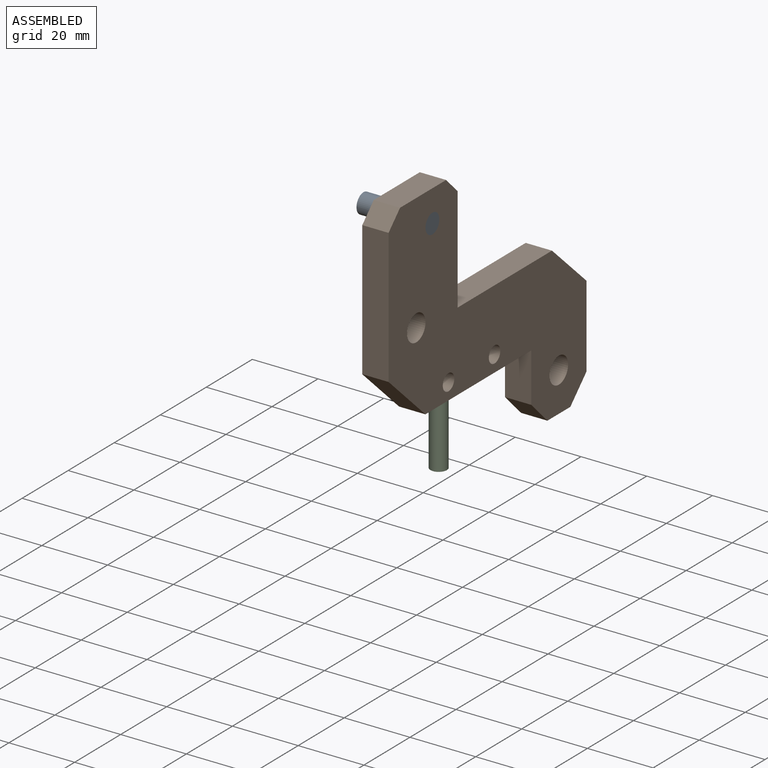
[diagram: assembled view]
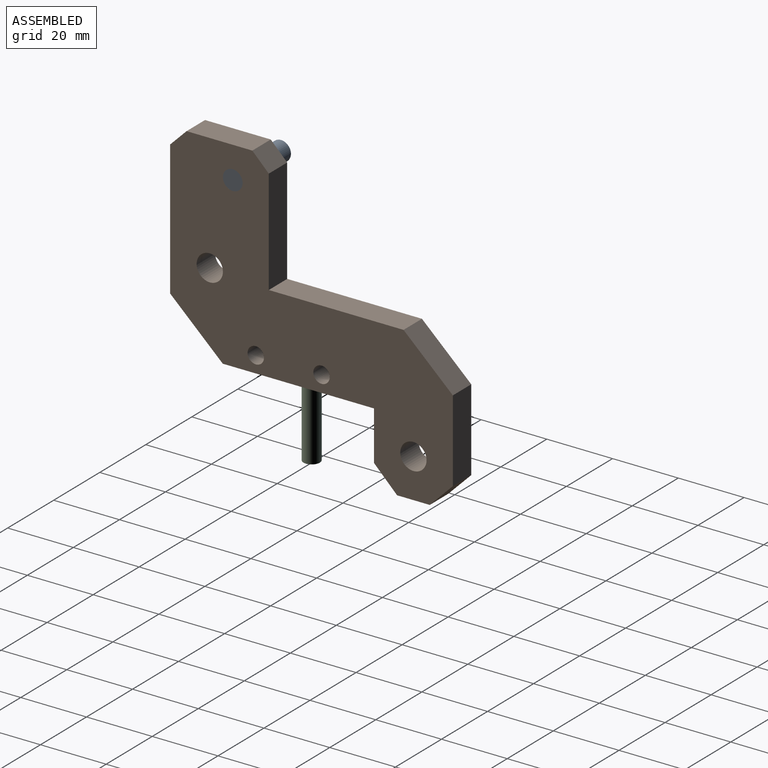
[diagram: assembled view, second angle]
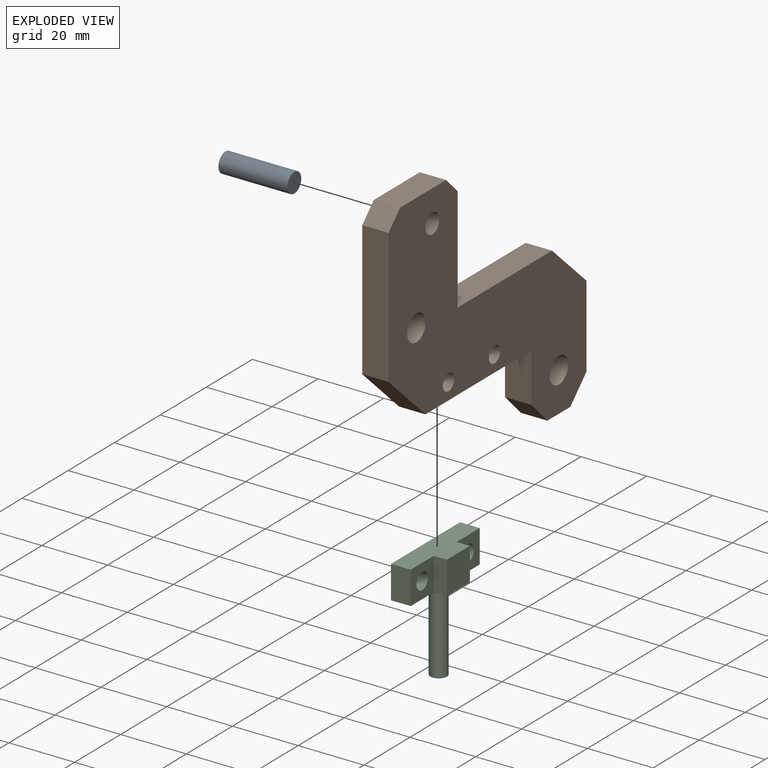
[diagram: exploded view]
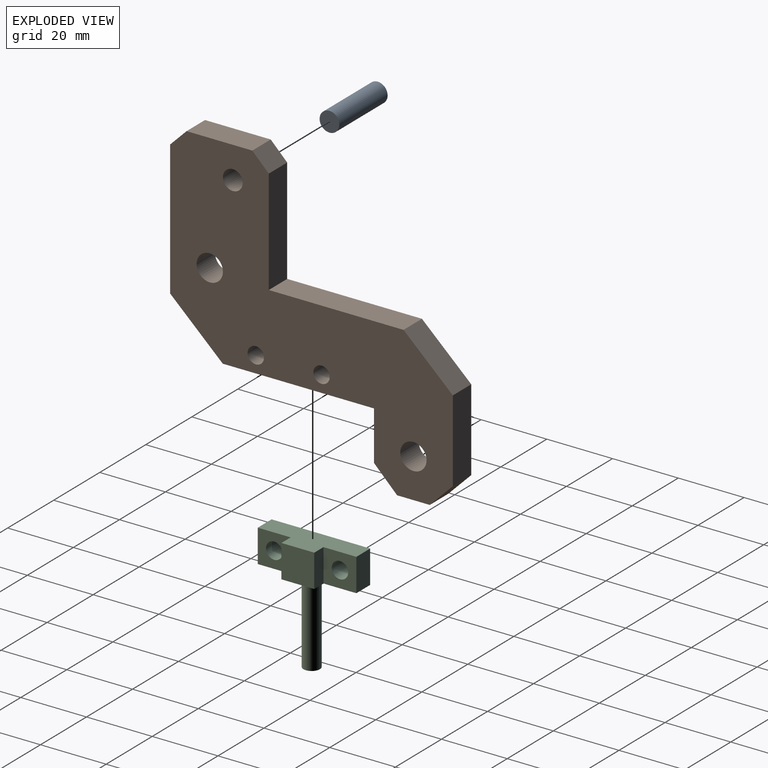
[diagram: exploded view, second angle]
ASSEMBLY  parts=3 mates=2
PART A: 3 faces, bbox 21x6x6 mm
  f0: cylinder r=3mm len=21mm, axis (1,0,0), area 395.8mm2, adj f1,f2
  f1: plane 6x6mm, normal (-1,0,0), area 28.3mm2, adj f0
  f2: plane 6x6mm, normal (1,0,0), area 28.3mm2, adj f0
PART B: 25 faces, bbox 8x86x83 mm
  f0: plane 20x8mm, normal (0,0,1), area 160mm2, adj f1,f15,f16,f17
  f1: plane 8x5mm, normal (0,-0.71,0.71), area 56.6mm2, adj f0,f2,f16,f17
  f2: plane 41x8mm, normal (0,-1,0), area 328mm2, adj f1,f3,f16,f17
  f3: plane 16x15mm, normal (0,-0.68,-0.73), area 175.5mm2, adj f2,f4,f16,f17
  f4: plane 46x8mm, normal (0,0,-1), area 328mm2, adj f3,f5,f16,f17,f18,f19,f21
  f5: plane 14.97x8mm, normal (0,-1,0), area 119.8mm2, adj f4,f6,f16,f17
  f6: plane 8x7.03mm, normal (0,-0.71,-0.71), area 79.5mm2, adj f5,f7,f16,f17
  f7: plane 9.94x8mm, normal (0,0,-1), area 79.5mm2, adj f6,f8,f16,f17
  f8: plane 8x7.03mm, normal (0,0.71,-0.71), area 79.5mm2, adj f7,f9,f16,f17
  f9: plane 24.97x8mm, normal (0,1,0), area 199.8mm2, adj f8,f10,f16,f17
  f10: plane 15x14mm, normal (0,0.68,0.73), area 164.1mm2, adj f9,f11,f16,f17
  f11: plane 41x8mm, normal (0,0,1), area 328mm2, adj f10,f12,f16,f17
  f12: plane 32x8mm, normal (0,1,0), area 256mm2, adj f11,f15,f16,f17
  f13: cylinder r=4mm len=8mm, axis (-1,0,0), area 201.1mm2, adj f16,f17
  f14: cylinder r=4mm len=8mm, axis (-1,0,0), area 201.1mm2, adj f16,f17
  f15: plane 8x5mm, normal (0,0.71,0.71), area 56.6mm2, adj f0,f12,f16,f17
  f16: plane 86x83mm, normal (1,0,0), area 3234.5mm2, adj f0,f1,f2,f3,f4,f5,f6,f7
  f17: plane 86x83mm, normal (-1,0,0), area 3075.2mm2, adj f0,f1,f2,f3,f4,f5,f6,f7
  f18: plane 12x4mm, normal (0,-1,0), area 48mm2, adj f4,f17,f20,f21
  f19: plane 12x4mm, normal (0,1,0), area 48mm2, adj f4,f17,f20,f21
  f20: cylinder r=5mm len=10mm, axis (-1,0,0), area 62.8mm2, adj f17,f18,f19,f21
  f21: plane 17x10mm, normal (-1,0,0), area 159.3mm2, adj f4,f18,f19,f20
  f22: cylinder r=2.5mm len=8mm, axis (-1,0,0), area 125.7mm2, adj f16,f17
  f23: cylinder r=2.5mm len=8mm, axis (-1,0,0), area 125.7mm2, adj f16,f17
  f24: cylinder r=3mm len=8mm, axis (-1,0,0), area 150.8mm2, adj f16,f17
PART C: 14 faces, bbox 10x30x35 mm
  f0: plane 30x10mm, normal (-1,0,0), area 260.7mm2, adj f1,f7,f8,f9,f10,f11
  f1: plane 10x6mm, normal (0,1,0), area 60mm2, adj f0,f2,f8,f9
  f2: plane 10x10mm, normal (1,0,0), area 80.4mm2, adj f1,f3,f8,f9,f11
  f3: plane 10x4mm, normal (0,1,0), area 40mm2, adj f2,f4,f8,f9
  f4: plane 10x10mm, normal (1,0,0), area 100mm2, adj f3,f5,f8,f9
  f5: plane 10x4mm, normal (0,-1,0), area 40mm2, adj f4,f6,f8,f9
  f6: plane 10x10mm, normal (1,0,0), area 80.4mm2, adj f5,f7,f8,f9,f10
  f7: plane 10x6mm, normal (0,-1,0), area 60mm2, adj f0,f6,f8,f9
  f8: plane 30x10mm, normal (0,0,1), area 220mm2, adj f0,f1,f2,f3,f4,f5,f6,f7
  f9: plane 30x10mm, normal (0,0,-1), area 200.4mm2, adj f0,f1,f2,f3,f4,f5,f6,f7
  f10: cylinder r=2.5mm len=6mm, axis (1,0,0), area 94.2mm2, adj f0,f6
  f11: cylinder r=2.5mm len=6mm, axis (1,0,0), area 94.2mm2, adj f0,f2
  f12: cylinder r=2.5mm len=25mm, axis (0,0,1), area 392.7mm2, adj f9,f13
  f13: plane 5x5mm, normal (0,0,-1), area 19.6mm2, adj f12
PLACE A t=(1268.83,-404.76,-297.88)mm
PLACE B t=(1268.83,-404.76,-297.88)mm
PLACE C t=(1268.83,-404.76,-297.88)mm
MATE planar B.f4 <-> C.f9  axis (0,0,-1) through (1272.83,-363.71,-297.88)mm
MATE planar A.f0 <-> B.f24  axis (1,0,0) through (1276.83,-385.71,-246.58)mm
